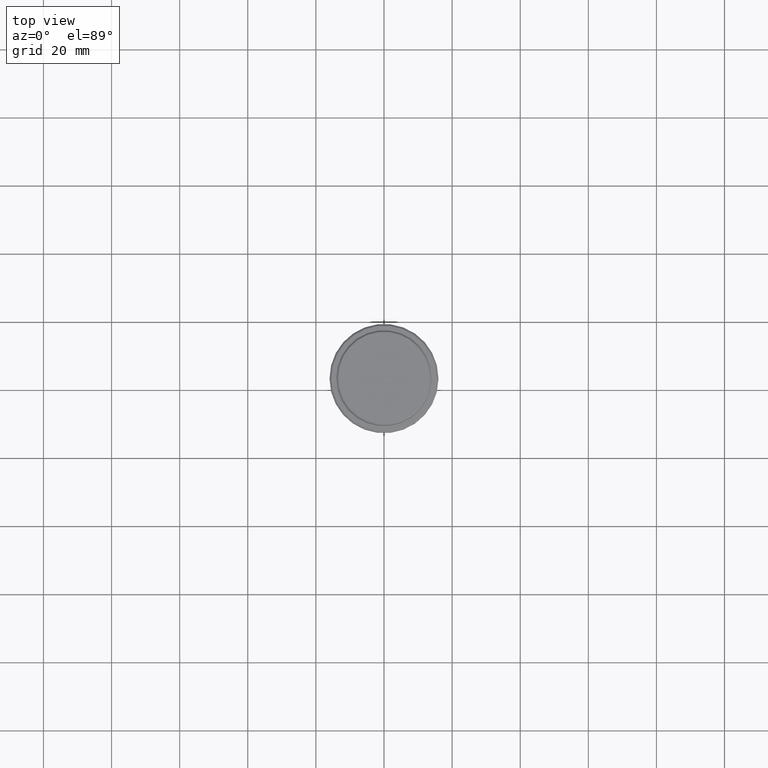
[diagram: clean part render]
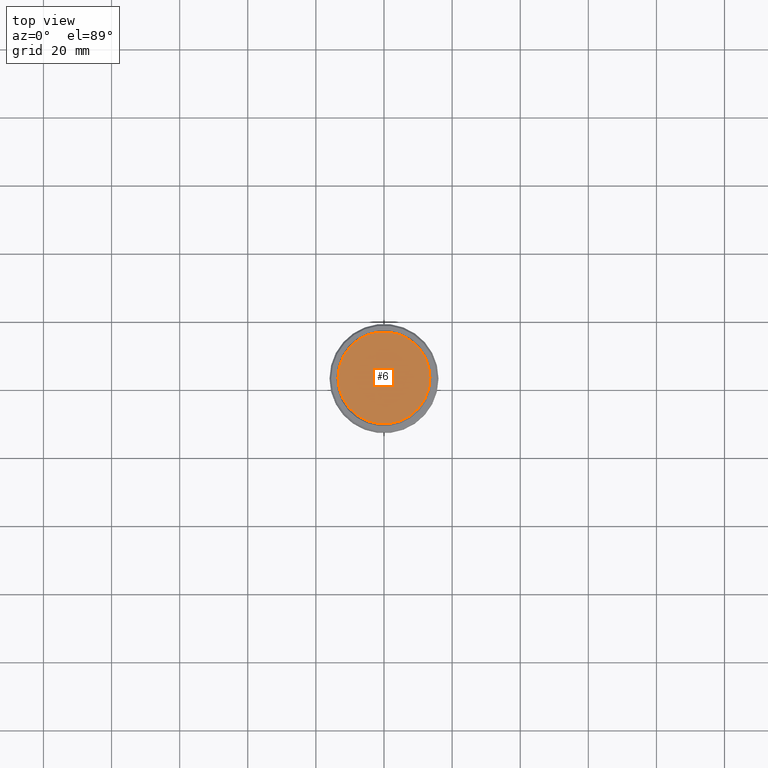
[diagram: same view with one face highlighted and labeled with its STEP entity id]
A machine part, top view. The second image highlights one B-rep face of the part: STEP entity #6.
In plain terms, the highlighted planar face has unit normal (0, -0, 1).
Its self-contained STEP definition (entity closure, byte-faithful):
#6 = ADVANCED_FACE ( 'NONE', ( #796 ), #581, .T. ) ;
#25 = CARTESIAN_POINT ( 'NONE',  ( 13.49999999999998579, 1.683889348827608879E-15, 0.000000000000000000 ) ) ;
#27 = CARTESIAN_POINT ( 'NONE',  ( 0.000000000000000000, 0.000000000000000000, 0.000000000000000000 ) ) ;
#34 = AXIS2_PLACEMENT_3D ( 'NONE', #114, #888, #1322 ) ;
#66 = ORIENTED_EDGE ( 'NONE', *, *, #434, .T. ) ;
#81 = AXIS2_PLACEMENT_3D ( 'NONE', #27, #454, #896 ) ;
#114 = CARTESIAN_POINT ( 'NONE',  ( 0.000000000000000000, 0.000000000000000000, 0.000000000000000000 ) ) ;
#340 = CARTESIAN_POINT ( 'NONE',  ( 0.000000000000000000, 0.000000000000000000, 0.000000000000000000 ) ) ;
#434 = EDGE_CURVE ( 'NONE', #759, #757, #641, .T. ) ;
#454 = DIRECTION ( 'NONE',  ( -0.000000000000000000, -0.000000000000000000, 1.000000000000000000 ) ) ;
#496 = EDGE_CURVE ( 'NONE', #757, #759, #1130, .T. ) ;
#581 = PLANE ( 'NONE',  #595 ) ;
#595 = AXIS2_PLACEMENT_3D ( 'NONE', #340, #1226, #890 ) ;
#641 = CIRCLE ( 'NONE', #34, 13.49999999999998579 ) ;
#757 = VERTEX_POINT ( 'NONE', #25 ) ;
#759 = VERTEX_POINT ( 'NONE', #1249 ) ;
#796 = FACE_OUTER_BOUND ( 'NONE', #947, .T. ) ;
#871 = ORIENTED_EDGE ( 'NONE', *, *, #496, .T. ) ;
#888 = DIRECTION ( 'NONE',  ( -0.000000000000000000, -0.000000000000000000, 1.000000000000000000 ) ) ;
#890 = DIRECTION ( 'NONE',  ( 1.000000000000000000, 0.000000000000000000, 0.000000000000000000 ) ) ;
#896 = DIRECTION ( 'NONE',  ( 1.000000000000000000, 0.000000000000000000, 0.000000000000000000 ) ) ;
#947 = EDGE_LOOP ( 'NONE', ( #66, #871 ) ) ;
#1130 = CIRCLE ( 'NONE', #81, 13.49999999999998579 ) ;
#1226 = DIRECTION ( 'NONE',  ( 0.000000000000000000, -0.000000000000000000, 1.000000000000000000 ) ) ;
#1249 = CARTESIAN_POINT ( 'NONE',  ( -13.49999999999998579, 0.000000000000000000, 0.000000000000000000 ) ) ;
#1322 = DIRECTION ( 'NONE',  ( 1.000000000000000000, 0.000000000000000000, 0.000000000000000000 ) ) ;